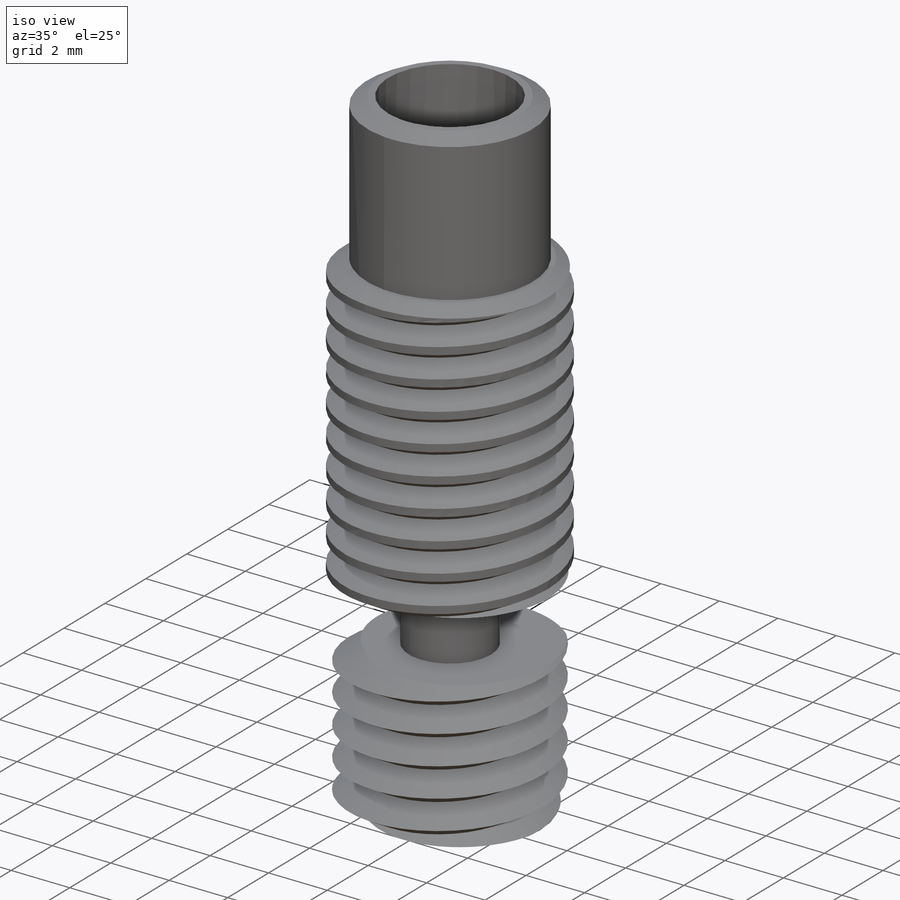
[diagram: iso view]
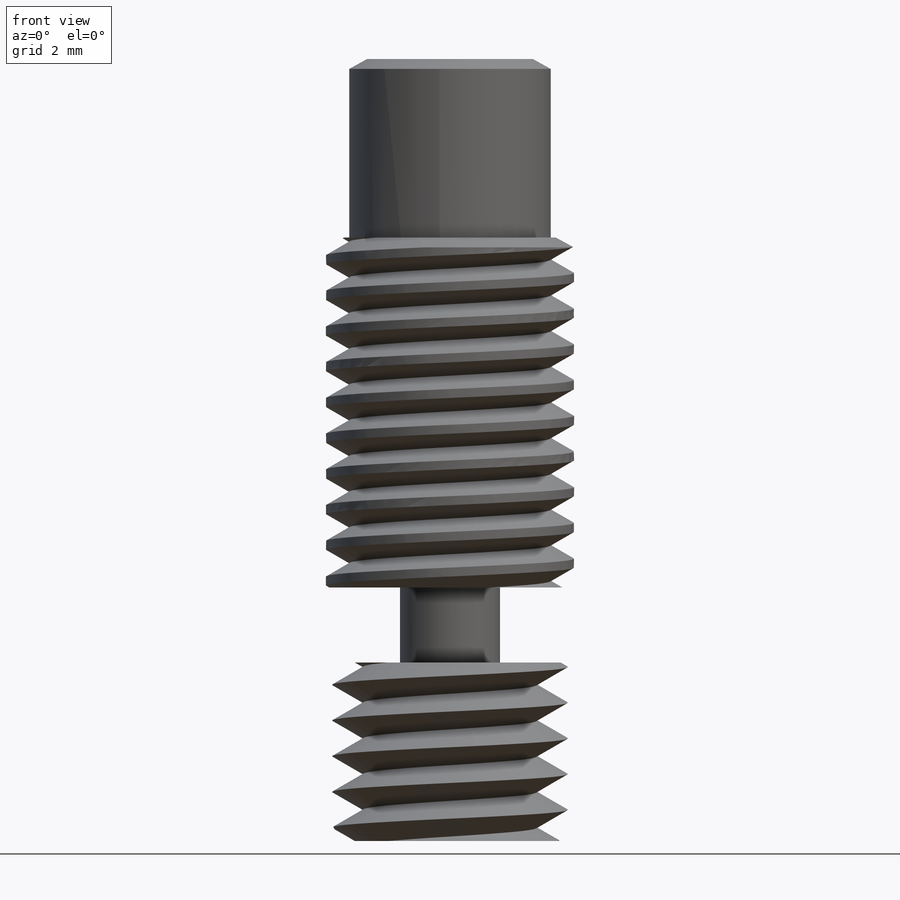
[diagram: front view]
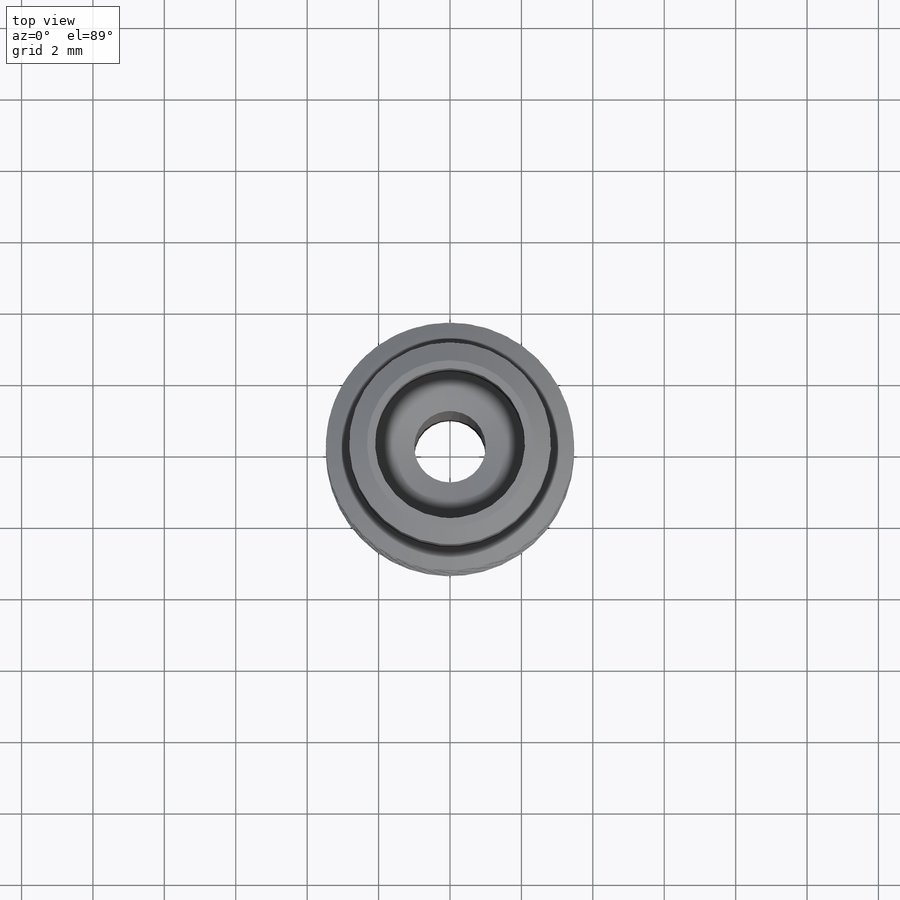
[diagram: top view]
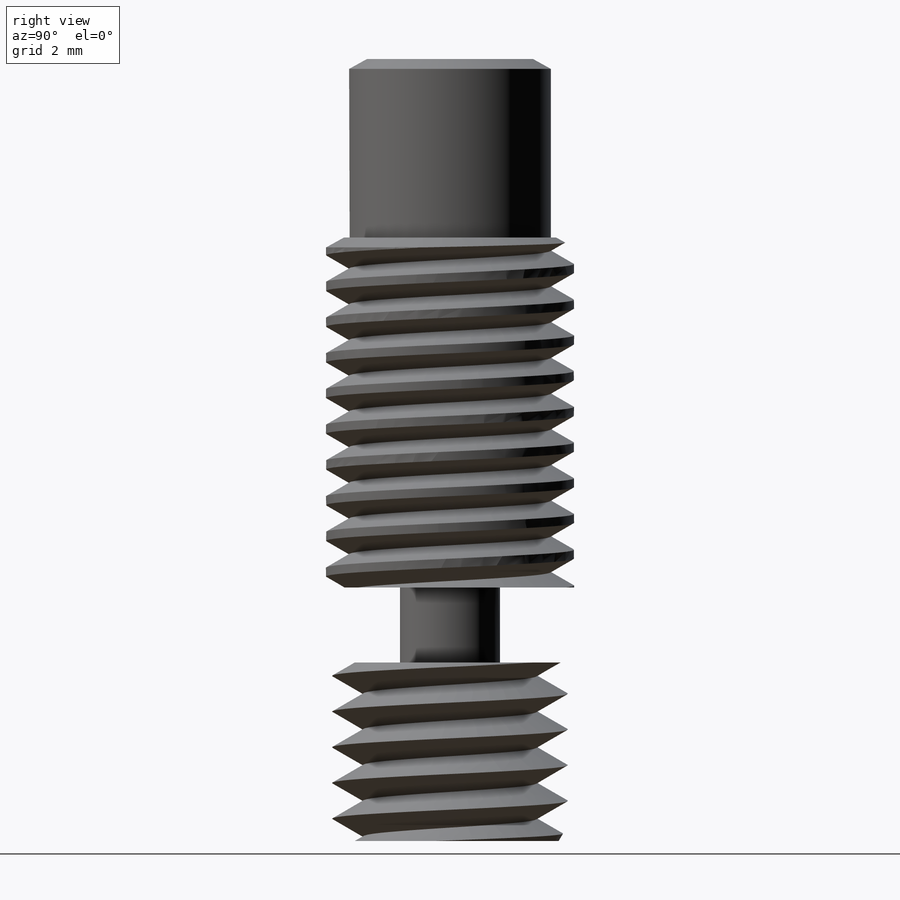
[diagram: right view]
SOLIDWORKS PART (.sldprt)
format: sldprt  version: not decoded by parser v0  size: 615,936 bytes
history: native  units: mm
features: sketch x8, helix x3, sweep x3, material x1, extrude x1, cut_revolve x1, chamfer x1 (+13 scaffold rows collapsed)
feature tree (31):
  scaffold x13  (default folders/planes/origin — collapsed)
  material  "AISI 304"
  sketch  "Sketch1"  dims[D1=7.0mm]
  extrude  "Boss-Extrude1"  Depth=21.9mm
  sketch  "Sketch2"  dims[c1.D1=1.4mm c1.D2=2.1mm c1.D3=7.1mm c1.D4=1.0mm c1.D5=23.0mm c1.D6=5.0mm c1.D7=2.825mm c1.D8=1.0mm c1.D9=2.1mm c1.D10=1.1mm c2.D10=~121.548886deg c3.D10=~22.491358mm c4.D10=72.0deg c4.D11=3.475mm c4.D12=~28.166731mm]
  cut_revolve  "Cut-Revolve1"  Angle=360deg
  sketch  "Sketch5"  dims[D1=4.88mm]
  helix  "Helix/Spiral1"  Pitch=6mm
  sketch  "Sketch4"  dims[c1.D1=0.49mm c1.D2=~0.598658mm c2.D2=123.3632deg c3.D2=~0.402751mm c4.D2=~143.749109deg c5.D2=~0.394665mm c6.D2=60.0deg c6.D3=1.0mm c6.D4=1.0mm c6.D5=2.44mm c7.D4=2.98mm c7.D1=~1.040002mm c8.D1=60.0deg c8.D2=~4.401617mm c9.D2=30.0deg c9.D3=1.05mm c9.D6=4.0mm]
  sketch  "Sketch6"  dims[D1=4.88mm]
  helix  "Helix/Spiral2"  Pitch=2mm
  chamfer  "Chamfer2"  Distance=0.5mm Angle=29deg
  sketch  "Sketch7"  dims[D1=0.0mm]
  sweep  "Cut-Sweep2"
  sweep  "Cut-Sweep3"
  sketch  "Sketch9"  dims[c1.D1=~2.085538mm c2.D1=30.0deg c2.D2=0.505mm]
  sketch  "Sketch10"
  helix  "Helix/Spiral3"  Pitch=15.5mm
  sweep  "Cut-Sweep4"
decode coverage: 13 of 17 modeling features carry decoded parameters
note: ~ marks probable driven/reference dimensions
note: suppression state not decoded; provenance and decode notes live in map.json
